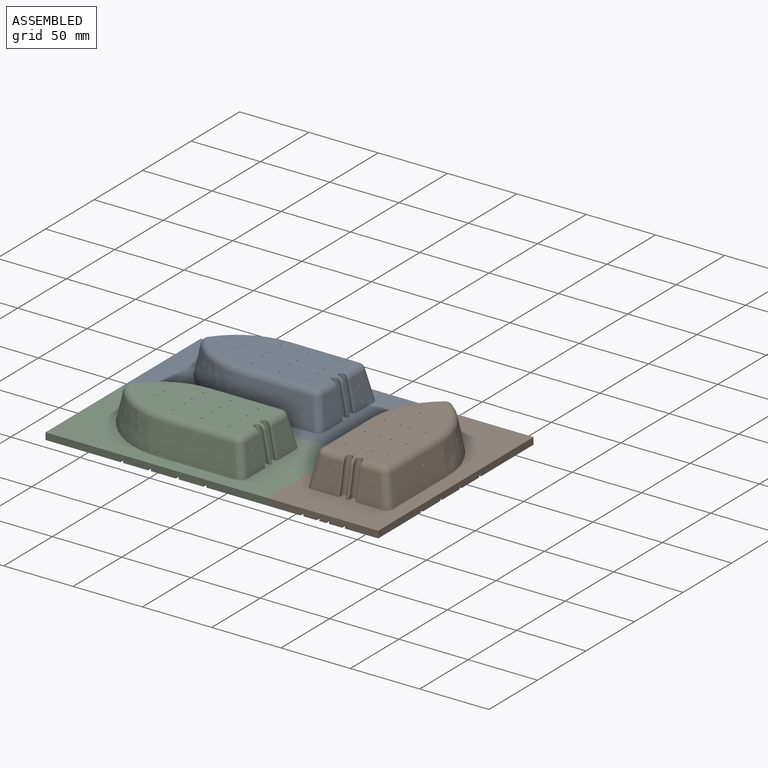
[diagram: assembled view]
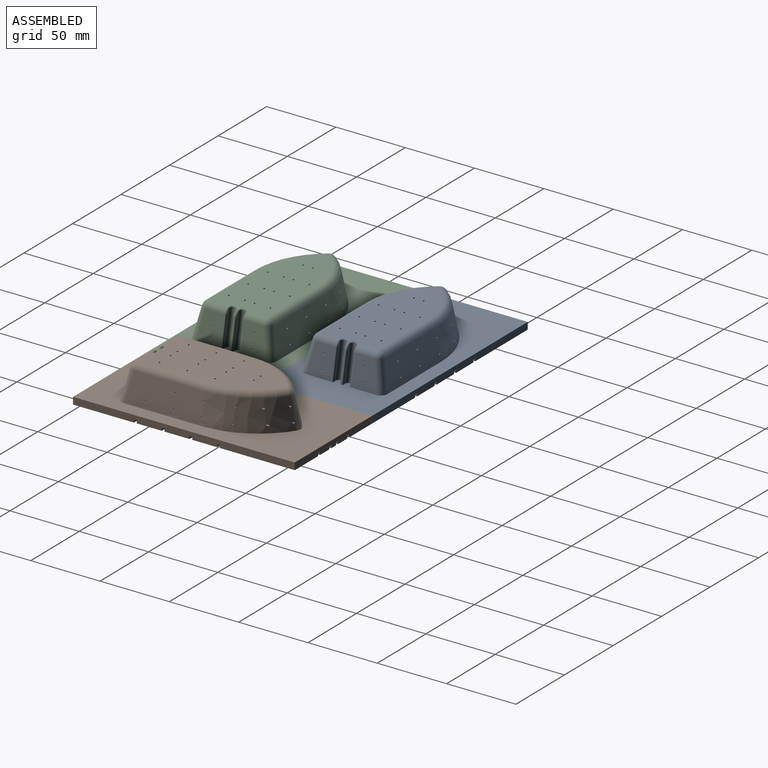
[diagram: assembled view, second angle]
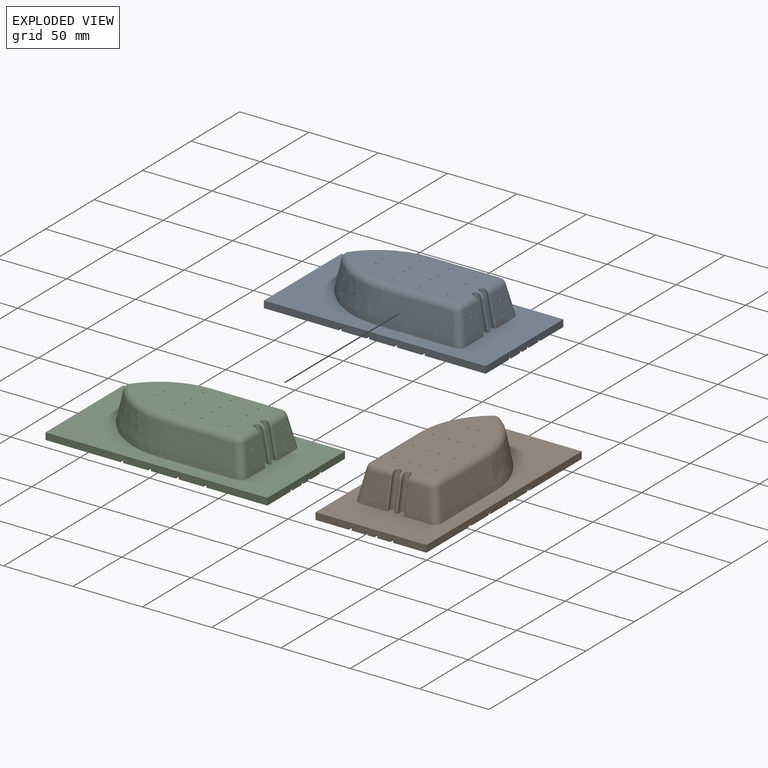
[diagram: exploded view]
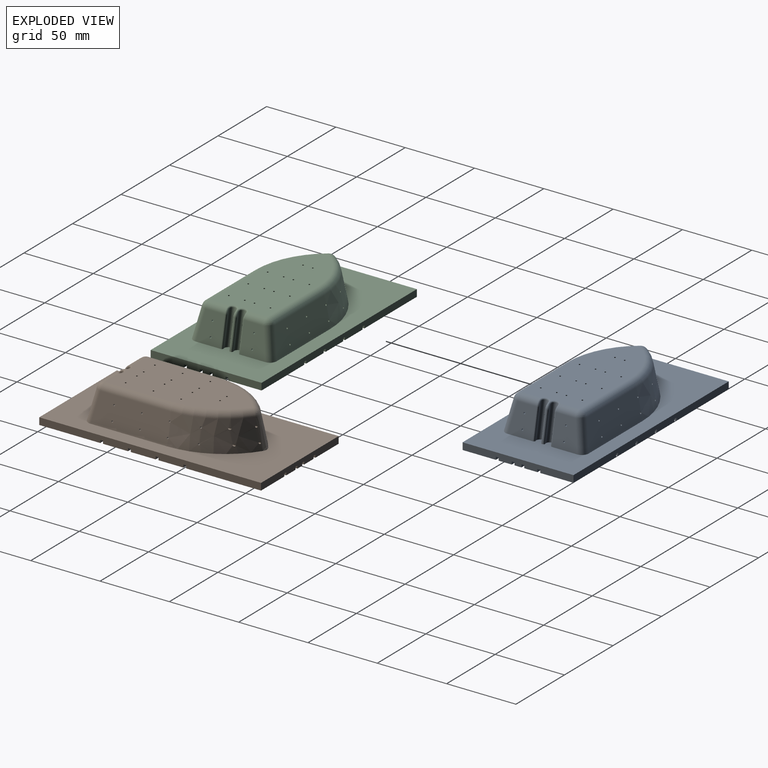
[diagram: exploded view, second angle]
ASSEMBLY  parts=3 mates=2
PART A: 267 faces, bbox 160.8x80.8x41.3 mm
  f0: plane 18x9.5mm, normal (0,0,-1), area 171mm2, adj f38,f50,f232,f233
  f1: plane 18x9.5mm, normal (0,0,-1), area 171mm2, adj f39,f51,f230,f231
  f2: plane 18x9.5mm, normal (0,0,-1), area 171mm2, adj f40,f52,f228,f229
  f3: plane 44x9.5mm, normal (0,0,-1), area 418mm2, adj f126,f222,f226,f227
  f4: plane 18x5mm, normal (0,0,-1), area 90mm2, adj f30,f42,f248,f249
  f5: plane 18x5mm, normal (0,0,-1), area 90mm2, adj f31,f43,f246,f247
  f6: plane 18x5mm, normal (0,0,-1), area 90mm2, adj f32,f44,f244,f245
  f7: plane 44x5mm, normal (0,0,-1), area 220mm2, adj f126,f220,f223,f243
  f8: plane 18x9.5mm, normal (0,0,-1), area 171mm2, adj f22,f34,f256,f257
  f9: plane 18x9.5mm, normal (0,0,-1), area 171mm2, adj f23,f35,f254,f255
  f10: plane 18x9.5mm, normal (0,0,-1), area 171mm2, adj f24,f36,f252,f253
  f11: plane 44x9.5mm, normal (0,0,-1), area 418mm2, adj f126,f218,f221,f251
  f12: plane 24x18mm, normal (0,0,-1), area 432mm2, adj f20,f26,f263,f266
  f13: plane 24x18mm, normal (0,0,-1), area 432mm2, adj f20,f27,f261,f264
  f14: plane 24x18mm, normal (0,0,-1), area 432mm2, adj f20,f28,f259,f262
  f15: plane 44x24mm, normal (0,0,-1), area 1056mm2, adj f20,f126,f219,f260
  f16: plane 24x18mm, normal (0,0,-1), area 432mm2, adj f46,f127,f240,f241
  f17: plane 24x18mm, normal (0,0,-1), area 432mm2, adj f47,f127,f238,f239
  f18: plane 24x18mm, normal (0,0,-1), area 432mm2, adj f48,f127,f236,f237
  f19: plane 44x24mm, normal (0,0,-1), area 1056mm2, adj f126,f127,f225,f235
  f20: plane 160x5mm, normal (0,1,0), area 784mm2, adj f12,f13,f14,f15,f56,f57,f126,f129
  f21: plane 54x2mm, normal (0,1,0), area 108mm2, adj f55,f57,f224,f258
  f22: plane 18x2mm, normal (0,1,0), area 36mm2, adj f8,f224,f256,f257
  f23: plane 18x2mm, normal (0,1,0), area 36mm2, adj f9,f224,f254,f255
  f24: plane 18x2mm, normal (0,1,0), area 36mm2, adj f10,f224,f252,f253
  f25: plane 54x2mm, normal (0,-1,0), area 108mm2, adj f56,f57,f224,f265
  f26: plane 18x2mm, normal (0,-1,0), area 36mm2, adj f12,f224,f263,f266
  f27: plane 18x2mm, normal (0,-1,0), area 36mm2, adj f13,f224,f261,f264
  f28: plane 18x2mm, normal (0,-1,0), area 36mm2, adj f14,f224,f259,f262
  f29: plane 54x2mm, normal (0,1,0), area 108mm2, adj f54,f57,f224,f250
  f30: plane 18x2mm, normal (0,1,0), area 36mm2, adj f4,f224,f248,f249
  f31: plane 18x2mm, normal (0,1,0), area 36mm2, adj f5,f224,f246,f247
  f32: plane 18x2mm, normal (0,1,0), area 36mm2, adj f6,f224,f244,f245
  f33: plane 54x2mm, normal (0,-1,0), area 108mm2, adj f55,f57,f224,f258
  f34: plane 18x2mm, normal (0,-1,0), area 36mm2, adj f8,f224,f256,f257
  f35: plane 18x2mm, normal (0,-1,0), area 36mm2, adj f9,f224,f254,f255
  f36: plane 18x2mm, normal (0,-1,0), area 36mm2, adj f10,f224,f252,f253
  f37: plane 54x2mm, normal (0,1,0), area 108mm2, adj f53,f57,f224,f234
  f38: plane 18x2mm, normal (0,1,0), area 36mm2, adj f0,f224,f232,f233
  f39: plane 18x2mm, normal (0,1,0), area 36mm2, adj f1,f224,f230,f231
  f40: plane 18x2mm, normal (0,1,0), area 36mm2, adj f2,f224,f228,f229
  f41: plane 54x2mm, normal (0,-1,0), area 108mm2, adj f54,f57,f224,f250
  f42: plane 18x2mm, normal (0,-1,0), area 36mm2, adj f4,f224,f248,f249
  f43: plane 18x2mm, normal (0,-1,0), area 36mm2, adj f5,f224,f246,f247
  f44: plane 18x2mm, normal (0,-1,0), area 36mm2, adj f6,f224,f244,f245
  f45: plane 54x2mm, normal (0,1,0), area 108mm2, adj f57,f128,f224,f242
  f46: plane 18x2mm, normal (0,1,0), area 36mm2, adj f16,f224,f240,f241
  f47: plane 18x2mm, normal (0,1,0), area 36mm2, adj f17,f224,f238,f239
  f48: plane 18x2mm, normal (0,1,0), area 36mm2, adj f18,f224,f236,f237
  f49: plane 54x2mm, normal (0,-1,0), area 108mm2, adj f53,f57,f224,f234
  f50: plane 18x2mm, normal (0,-1,0), area 36mm2, adj f0,f224,f232,f233
  f51: plane 18x2mm, normal (0,-1,0), area 36mm2, adj f1,f224,f230,f231
  f52: plane 18x2mm, normal (0,-1,0), area 36mm2, adj f2,f224,f228,f229
  f53: plane 54x9.5mm, normal (0,0,-1), area 513mm2, adj f37,f49,f57,f234
  f54: plane 54x5mm, normal (0,0,-1), area 270mm2, adj f29,f41,f57,f250
  f55: plane 54x9.5mm, normal (0,0,-1), area 513mm2, adj f21,f33,f57,f258
  f56: plane 54x24mm, normal (0,0,-1), area 1296mm2, adj f20,f25,f57,f265
  f57: plane 80x5mm, normal (-1,0,0), area 384mm2, adj f20,f21,f25,f29,f33,f37,f41,f45
  f58: cylinder r=0.6mm len=7.58mm, axis (0,0,1), area 28.6mm2, adj f147,f148,f191,f205,f224
  f59: cylinder r=0.6mm len=7.58mm, axis (0,0,1), area 28.1mm2, adj f121,f149,f192,f203,f224
  f60: cylinder r=0.6mm len=7.58mm, axis (0,0,1), area 28.4mm2, adj f75,f130,f202,f213,f224
  f61: cylinder r=0.6mm len=7.58mm, axis (0,0,1), area 28.6mm2, adj f149,f151,f195,f202,f224
  f62: cylinder r=0.6mm len=7.58mm, axis (0,0,1), area 28.6mm2, adj f163,f165,f194,f195,f224
  f63: cylinder r=0.6mm len=7.58mm, axis (0,0,1), area 28.1mm2, adj f119,f165,f192,f193,f224
  f64: cylinder r=0.6mm len=7.58mm, axis (0,0,1), area 28.6mm2, adj f163,f167,f190,f191,f224
  f65: cylinder r=0.6mm len=7.58mm, axis (0,0,1), area 28.6mm2, adj f151,f153,f190,f201,f224
  f66: cylinder r=0.6mm len=7.58mm, axis (0,0,1), area 28.5mm2, adj f130,f132,f201,f212,f224
  f67: cylinder r=0.6mm len=7.58mm, axis (0,0,1), area 28.4mm2, adj f83,f132,f200,f211,f224
  f68: cylinder r=0.6mm len=7.58mm, axis (0,0,1), area 28.5mm2, adj f79,f153,f188,f200,f224
  f69: cylinder r=0.6mm len=7.58mm, axis (0,0,1), area 28.5mm2, adj f77,f167,f188,f189,f224
  f70: cylinder r=0.6mm len=7.58mm, axis (0,0,1), area 28.5mm2, adj f80,f147,f189,f206,f224
  f71: cylinder r=0.6mm len=7.58mm, axis (0,0,1), area 28.4mm2, adj f72,f148,f194,f204,f224
  f72: cylinder r=0.6mm len=19.58mm, axis (1,0,0), area 72.3mm2, adj f71,f146,f193,f194,f204,f217
  f73: cylinder r=0.6mm len=19.58mm, axis (1,0,0), area 72.3mm2, adj f145,f146,f185,f186,f207,f216
  f74: cylinder r=0.6mm len=19.58mm, axis (1,0,0), area 72.3mm2, adj f131,f136,f198,f199,f210,f215
  f75: cylinder r=0.6mm len=19.58mm, axis (1,0,0), area 72.3mm2, adj f60,f131,f202,f203,f213,f214
  f76: cylinder r=0.6mm len=11.8mm, axis (1,0,0), area 44.3mm2, adj f94,f169,f176,f179,f182
  f77: cylinder r=0.6mm len=13.8mm, axis (1,0,0), area 51.9mm2, adj f69,f94,f169,f188,f189
  f78: cylinder r=0.6mm len=11.8mm, axis (1,0,0), area 44.3mm2, adj f93,f155,f162,f182,f196
  f79: cylinder r=0.6mm len=13.8mm, axis (1,0,0), area 51.9mm2, adj f68,f93,f155,f188,f200
  f80: cylinder r=0.6mm len=18.7mm, axis (1,0,0), area 70.4mm2, adj f70,f88,f144,f189,f206
  f81: cylinder r=0.6mm len=16.7mm, axis (1,0,0), area 62.8mm2, adj f88,f143,f144,f178,f179
  f82: cylinder r=0.6mm len=16.7mm, axis (1,0,0), area 62.8mm2, adj f86,f134,f139,f196,f208
  f83: cylinder r=0.6mm len=18.7mm, axis (1,0,0), area 70.4mm2, adj f67,f86,f134,f200,f211
  f84: cylinder r=5mm len=3.3mm, axis (0,-1,0), area 1mm2, adj f85,f111,f115
  f85: plane 20.98x4.2mm, normal (0.98,0,0.2), area 10.7mm2, adj f84,f109,f113,f129
  f86: plane 21.46x18.83mm, normal (0.98,0,0.2), area 345.4mm2, adj f82,f83,f95,f96,f114,f129
  f87: plane 92.02x41.8mm, normal (0,0,1), area 3301.7mm2, adj f95,f99,f100,f102,f104,f106,f107,f112
  f88: plane 21.46x18.83mm, normal (0.98,0,0.2), area 345.4mm2, adj f80,f81,f98,f99,f108,f129
  f89: plane 55.58x21.46mm, normal (0,-0.98,0.2), area 1128.2mm2, adj f91,f96,f100,f129,f208,f209,f210,f211
  f90: plane 55.27x21.16mm, normal (0,0.98,0.2), area 1128.2mm2, adj f92,f98,f104,f129,f178,f181,f204,f205
  f91: cone r=55mm half-angle=11.3deg, axis (0,0,-1), area 1190.4mm2, adj f89,f102,f103,f120,f121,f124,f125,f129
  f92: cone r=55mm half-angle=11.3deg, axis (0,0,-1), area 1189.5mm2, adj f90,f103,f106,f118,f119,f122,f123,f129
  f93: cylinder r=2.5mm len=25.23mm, axis (-0.2,0,0.98), area 233.2mm2, adj f78,f79,f113,f114,f115,f116,f117,f129
  f94: cylinder r=2.5mm len=25.23mm, axis (-0.2,0,0.98), area 233.2mm2, adj f76,f77,f108,f109,f110,f111,f112,f129
  f95: cylinder r=5mm len=14.47mm, axis (0,-1,0), area 98.3mm2, adj f86,f87,f97,f116
  f96: cylinder r=5mm len=21.36mm, axis (-0.19,0.19,0.96), area 167.1mm2, adj f86,f89,f97,f129
  f97: sphere r=5mm, area 18.4mm2, adj f95,f96,f100
  f98: cylinder r=5mm len=21.36mm, axis (0.19,0.19,-0.96), area 167.1mm2, adj f88,f90,f101,f129
  f99: cylinder r=5mm len=14.47mm, axis (0,-1,0), area 98.3mm2, adj f87,f88,f101,f110
  f100: cylinder r=5mm len=50.9mm, axis (-1,0,0), area 349.5mm2, adj f87,f89,f97,f102
  f101: sphere r=5mm, area 40.8mm2, adj f98,f99,f104
  f102: torus R=50.9mm, axis (0,0,1), area 347.6mm2, adj f87,f91,f100,f105
  f103: bspline ~39.78x11.23mm, area 127.4mm2, adj f91,f92,f105,f129
  f104: cylinder r=5mm len=50.9mm, axis (1,0,0), area 349.5mm2, adj f87,f90,f101,f106
  f105: sphere r=5mm, area 32.1mm2, adj f102,f103,f106
  f106: torus R=50.9mm, axis (0,0,1), area 347.6mm2, adj f87,f92,f104,f105
  f107: cylinder r=5mm len=2.59mm, axis (0,-1,0), area 1.6mm2, adj f87,f111,f115
  f108: bspline ~39.17x9.12mm, area 41.5mm2, adj f88,f94,f110,f129
  f109: bspline ~39.17x9.12mm, area 41.5mm2, adj f85,f94,f111,f129
  f110: bspline ~5.67x4.55mm, area 10.2mm2, adj f94,f99,f108,f112
  f111: bspline ~5.72x5.26mm, area 10.2mm2, adj f84,f94,f107,f109,f112
  f112: bspline ~5.86x2.15mm, area 8.1mm2, adj f87,f94,f110,f111
  f113: bspline ~39.17x9.12mm, area 41.5mm2, adj f85,f93,f115,f129
  f114: bspline ~39.17x9.12mm, area 41.5mm2, adj f86,f93,f116,f129
  f115: bspline ~5.72x5.26mm, area 10.2mm2, adj f84,f93,f107,f113,f117
  f116: bspline ~5.72x5.26mm, area 10.2mm2, adj f93,f95,f114,f117
  f117: bspline ~5.86x2.15mm, area 8.1mm2, adj f87,f93,f115,f116
  f118: cylinder r=0.6mm len=26.11mm, axis (1,0,0), area 97.3mm2, adj f92,f166,f173,f184,f185
  f119: cylinder r=0.6mm len=28.58mm, axis (1,0,0), area 105.6mm2, adj f63,f92,f166,f192,f193
  f120: cylinder r=0.6mm len=26.15mm, axis (1,0,0), area 96.4mm2, adj f91,f150,f157,f184,f199
  f121: cylinder r=0.6mm len=28.58mm, axis (1,0,0), area 105.6mm2, adj f59,f91,f150,f192,f203
  f122: cylinder r=0.6mm len=18.88mm, axis (1,0,0), area 67mm2, adj f92,f193,f217
  f123: cylinder r=0.6mm len=15.77mm, axis (1,0,0), area 55mm2, adj f92,f185,f216
  f124: cylinder r=0.6mm len=15.77mm, axis (1,0,0), area 55mm2, adj f91,f199,f215
  f125: cylinder r=0.6mm len=18.88mm, axis (1,0,0), area 67mm2, adj f91,f203,f214
  f126: plane 80x5mm, normal (1,0,0), area 384mm2, adj f3,f7,f11,f15,f19,f20,f127,f129
  f127: plane 160x5mm, normal (0,-1,0), area 784mm2, adj f16,f17,f18,f19,f57,f126,f128,f129
  f128: plane 54x24mm, normal (0,0,-1), area 1296mm2, adj f45,f57,f127,f242
  f129: plane 160.79x80.79mm, normal (0,0,1), area 7043.5mm2, adj f20,f57,f85,f86,f88,f89,f90,f91
  f130: cylinder r=0.6mm len=19.15mm, axis (1,0,0), area 72.2mm2, adj f60,f66,f131,f133,f201,f202,f212,f213
  f131: cylinder r=0.6mm len=9.15mm, axis (0,0,1), area 34.3mm2, adj f74,f75,f130,f135,f198,f202,f210,f213
  f132: cylinder r=0.6mm len=19.15mm, axis (1,0,0), area 72.2mm2, adj f66,f67,f133,f134,f200,f201,f211,f212
  f133: cylinder r=0.6mm len=9.15mm, axis (0,0,1), area 34.4mm2, adj f130,f132,f135,f137,f197,f201,f209,f212
  f134: cylinder r=0.6mm len=9.15mm, axis (0,0,1), area 34.3mm2, adj f82,f83,f132,f137,f196,f200,f208,f211
  f135: cylinder r=0.6mm len=19.15mm, axis (1,0,0), area 72.1mm2, adj f131,f133,f136,f138,f197,f198,f209,f210
  f136: cylinder r=0.6mm len=9.58mm, axis (0,0,1), area 36mm2, adj f74,f87,f135,f198,f210
  f137: cylinder r=0.6mm len=19.15mm, axis (1,0,0), area 72.1mm2, adj f133,f134,f138,f139,f196,f197,f208,f209
  f138: cylinder r=0.6mm len=9.58mm, axis (0,0,1), area 36mm2, adj f87,f135,f137,f197,f209
  f139: cylinder r=0.6mm len=9.58mm, axis (0,0,1), area 36mm2, adj f82,f87,f137,f196,f208
  f140: cylinder r=0.6mm len=9.58mm, axis (0,0,1), area 36mm2, adj f87,f141,f177,f180,f181
  f141: cylinder r=0.6mm len=19.15mm, axis (1,0,0), area 72.1mm2, adj f140,f142,f145,f146,f180,f181,f186,f207
  f142: cylinder r=0.6mm len=9.15mm, axis (0,0,1), area 34.5mm2, adj f141,f147,f148,f177,f180,f181,f191,f205
  f143: cylinder r=0.6mm len=9.58mm, axis (0,0,1), area 36mm2, adj f81,f87,f177,f178,f179
  f144: cylinder r=0.6mm len=9.15mm, axis (0,0,1), area 34.4mm2, adj f80,f81,f147,f177,f178,f179,f189,f206
  f145: cylinder r=0.6mm len=9.58mm, axis (0,0,1), area 36mm2, adj f73,f87,f141,f186,f207
  f146: cylinder r=0.6mm len=9.15mm, axis (0,0,1), area 34.3mm2, adj f72,f73,f141,f148,f186,f194,f204,f207
  f147: cylinder r=0.6mm len=19.15mm, axis (1,0,0), area 72.2mm2, adj f58,f70,f142,f144,f189,f191,f205,f206
  f148: cylinder r=0.6mm len=19.15mm, axis (1,0,0), area 72.2mm2, adj f58,f71,f142,f146,f191,f194,f204,f205
  f149: cylinder r=0.6mm len=19.15mm, axis (1,0,0), area 72.2mm2, adj f59,f61,f150,f152,f192,f195,f202,f203
  f150: cylinder r=0.6mm len=9.15mm, axis (0,0,1), area 34.4mm2, adj f120,f121,f149,f156,f184,f192,f199,f203
  f151: cylinder r=0.6mm len=19.15mm, axis (1,0,0), area 72.2mm2, adj f61,f65,f152,f154,f190,f195,f201,f202
  f152: cylinder r=0.6mm len=9.15mm, axis (0,0,1), area 34.5mm2, adj f149,f151,f156,f158,f187,f195,f198,f202
  f153: cylinder r=0.6mm len=19.15mm, axis (1,0,0), area 72.2mm2, adj f65,f68,f154,f155,f188,f190,f200,f201
  f154: cylinder r=0.6mm len=9.15mm, axis (0,0,1), area 34.5mm2, adj f151,f153,f158,f160,f183,f190,f197,f201
  f155: cylinder r=0.6mm len=9.15mm, axis (0,0,1), area 34.4mm2, adj f78,f79,f153,f160,f182,f188,f196,f200
  f156: cylinder r=0.6mm len=19.15mm, axis (1,0,0), area 72.1mm2, adj f150,f152,f157,f159,f184,f187,f198,f199
  f157: cylinder r=0.6mm len=9.58mm, axis (0,0,1), area 36mm2, adj f87,f120,f156,f184,f199
  f158: cylinder r=0.6mm len=19.15mm, axis (1,0,0), area 72.1mm2, adj f152,f154,f159,f161,f183,f187,f197,f198
  f159: cylinder r=0.6mm len=9.58mm, axis (0,0,1), area 36mm2, adj f87,f156,f158,f187,f198
  f160: cylinder r=0.6mm len=19.15mm, axis (1,0,0), area 72.1mm2, adj f154,f155,f161,f162,f182,f183,f196,f197
  f161: cylinder r=0.6mm len=9.58mm, axis (0,0,1), area 36mm2, adj f87,f158,f160,f183,f197
  f162: cylinder r=0.6mm len=9.58mm, axis (0,0,1), area 36mm2, adj f78,f87,f160,f182,f196
  f163: cylinder r=0.6mm len=19.15mm, axis (1,0,0), area 72.2mm2, adj f62,f64,f164,f168,f190,f191,f194,f195
  f164: cylinder r=0.6mm len=9.15mm, axis (0,0,1), area 34.5mm2, adj f163,f165,f170,f172,f186,f187,f194,f195
  f165: cylinder r=0.6mm len=19.15mm, axis (1,0,0), area 72.2mm2, adj f62,f63,f164,f166,f192,f193,f194,f195
  f166: cylinder r=0.6mm len=9.15mm, axis (0,0,1), area 34.4mm2, adj f118,f119,f165,f172,f184,f185,f192,f193
  f167: cylinder r=0.6mm len=19.15mm, axis (1,0,0), area 72.2mm2, adj f64,f69,f168,f169,f188,f189,f190,f191
  f168: cylinder r=0.6mm len=9.15mm, axis (0,0,1), area 34.5mm2, adj f163,f167,f170,f174,f180,f183,f190,f191
  f169: cylinder r=0.6mm len=9.15mm, axis (0,0,1), area 34.4mm2, adj f76,f77,f167,f174,f179,f182,f188,f189
  f170: cylinder r=0.6mm len=19.15mm, axis (1,0,0), area 72.1mm2, adj f164,f168,f171,f175,f180,f183,f186,f187
  f171: cylinder r=0.6mm len=9.58mm, axis (0,0,1), area 36mm2, adj f87,f170,f172,f186,f187
  f172: cylinder r=0.6mm len=19.15mm, axis (1,0,0), area 72.1mm2, adj f164,f166,f171,f173,f184,f185,f186,f187
  f173: cylinder r=0.6mm len=9.58mm, axis (0,0,1), area 36mm2, adj f87,f118,f172,f184,f185
  f174: cylinder r=0.6mm len=19.15mm, axis (1,0,0), area 72.1mm2, adj f168,f169,f175,f176,f179,f180,f182,f183
  f175: cylinder r=0.6mm len=9.58mm, axis (0,0,1), area 36mm2, adj f87,f170,f174,f180,f183
  f176: cylinder r=0.6mm len=9.58mm, axis (0,0,1), area 36mm2, adj f76,f87,f174,f179,f182
  f177: cylinder r=0.6mm len=19.15mm, axis (1,0,0), area 72.1mm2, adj f140,f142,f143,f144,f178,f179,f180,f181
  f178: cylinder r=0.6mm len=11.66mm, axis (0,-1,0), area 43.6mm2, adj f81,f90,f143,f144,f177
  f179: cylinder r=0.6mm len=10.65mm, axis (0,-1,0), area 40.2mm2, adj f76,f81,f143,f144,f169,f174,f176,f177
  f180: cylinder r=0.6mm len=10.65mm, axis (0,-1,0), area 40.2mm2, adj f140,f141,f142,f168,f170,f174,f175,f177
  f181: cylinder r=0.6mm len=11.66mm, axis (0,-1,0), area 43.6mm2, adj f90,f140,f141,f142,f177
  f182: cylinder r=0.6mm len=6.15mm, axis (0,-1,0), area 23.2mm2, adj f76,f78,f155,f160,f162,f169,f174,f176
  f183: cylinder r=0.6mm len=6.15mm, axis (0,-1,0), area 23.2mm2, adj f154,f158,f160,f161,f168,f170,f174,f175
  f184: cylinder r=0.6mm len=6.15mm, axis (0,-1,0), area 23.2mm2, adj f118,f120,f150,f156,f157,f166,f172,f173
  f185: cylinder r=0.6mm len=11.08mm, axis (0,-1,0), area 40.2mm2, adj f73,f118,f123,f166,f172,f173
  f186: cylinder r=0.6mm len=10.65mm, axis (0,-1,0), area 40.2mm2, adj f73,f141,f145,f146,f164,f170,f171,f172
  f187: cylinder r=0.6mm len=6.15mm, axis (0,-1,0), area 23.2mm2, adj f152,f156,f158,f159,f164,f170,f171,f172
  f188: cylinder r=0.6mm len=6.15mm, axis (0,-1,0), area 23.2mm2, adj f68,f69,f77,f79,f153,f155,f167,f169
  f189: cylinder r=0.6mm len=10.65mm, axis (0,-1,0), area 40.2mm2, adj f69,f70,f77,f80,f144,f147,f167,f169
  f190: cylinder r=0.6mm len=6.15mm, axis (0,-1,0), area 23.2mm2, adj f64,f65,f151,f153,f154,f163,f167,f168
  f191: cylinder r=0.6mm len=10.65mm, axis (0,-1,0), area 40.2mm2, adj f58,f64,f142,f147,f148,f163,f167,f168
  f192: cylinder r=0.6mm len=6.15mm, axis (0,-1,0), area 23.2mm2, adj f59,f63,f119,f121,f149,f150,f165,f166
  f193: cylinder r=0.6mm len=11.08mm, axis (0,-1,0), area 40.2mm2, adj f63,f72,f119,f122,f165,f166
  f194: cylinder r=0.6mm len=10.65mm, axis (0,-1,0), area 40.2mm2, adj f62,f71,f72,f146,f148,f163,f164,f165
  f195: cylinder r=0.6mm len=6.15mm, axis (0,-1,0), area 23.2mm2, adj f61,f62,f149,f151,f152,f163,f164,f165
  f196: cylinder r=0.6mm len=10.65mm, axis (0,-1,0), area 40.2mm2, adj f78,f82,f134,f137,f139,f155,f160,f162
  f197: cylinder r=0.6mm len=10.65mm, axis (0,-1,0), area 40.2mm2, adj f133,f135,f137,f138,f154,f158,f160,f161
  f198: cylinder r=0.6mm len=10.65mm, axis (0,-1,0), area 40.2mm2, adj f74,f131,f135,f136,f152,f156,f158,f159
  f199: cylinder r=0.6mm len=11.08mm, axis (0,-1,0), area 40.2mm2, adj f74,f120,f124,f150,f156,f157
  f200: cylinder r=0.6mm len=10.65mm, axis (0,-1,0), area 40.2mm2, adj f67,f68,f79,f83,f132,f134,f153,f155
  f201: cylinder r=0.6mm len=10.65mm, axis (0,-1,0), area 40.2mm2, adj f65,f66,f130,f132,f133,f151,f153,f154
  f202: cylinder r=0.6mm len=10.65mm, axis (0,-1,0), area 40.2mm2, adj f60,f61,f75,f130,f131,f149,f151,f152
  f203: cylinder r=0.6mm len=11.08mm, axis (0,-1,0), area 40.2mm2, adj f59,f75,f121,f125,f149,f150
  f204: cylinder r=0.6mm len=13.7mm, axis (0,-1,0), area 51.1mm2, adj f71,f72,f90,f92,f146,f148
  f205: cylinder r=0.6mm len=13.66mm, axis (0,-1,0), area 51.1mm2, adj f58,f90,f142,f147,f148
  f206: cylinder r=0.6mm len=13.66mm, axis (0,-1,0), area 51.1mm2, adj f70,f80,f90,f144,f147
  f207: cylinder r=0.6mm len=11.7mm, axis (0,-1,0), area 43.6mm2, adj f73,f90,f92,f141,f145,f146
  f208: cylinder r=0.6mm len=11.7mm, axis (0,-1,0), area 44mm2, adj f82,f89,f134,f137,f139
  f209: cylinder r=0.6mm len=11.7mm, axis (0,-1,0), area 44mm2, adj f89,f133,f135,f137,f138
  f210: cylinder r=0.6mm len=11.7mm, axis (0,-1,0), area 43.6mm2, adj f74,f89,f91,f131,f135,f136
  f211: cylinder r=0.6mm len=13.7mm, axis (0,-1,0), area 51.5mm2, adj f67,f83,f89,f132,f134
  f212: cylinder r=0.6mm len=13.7mm, axis (0,-1,0), area 51.5mm2, adj f66,f89,f130,f132,f133
  f213: cylinder r=0.6mm len=13.7mm, axis (0,-1,0), area 51.1mm2, adj f60,f75,f89,f91,f130,f131
  f214: cylinder r=0.6mm len=10.76mm, axis (0,-1,0), area 38.2mm2, adj f75,f91,f125
  f215: cylinder r=0.6mm len=8.63mm, axis (0,-1,0), area 30.1mm2, adj f74,f91,f124
  f216: cylinder r=0.6mm len=8.5mm, axis (0,-1,0), area 30.2mm2, adj f73,f92,f123
  f217: cylinder r=0.6mm len=10.63mm, axis (0,-1,0), area 38.2mm2, adj f72,f92,f122
  f218: plane 44x2mm, normal (0,1,0), area 88mm2, adj f11,f126,f224,f251
  f219: plane 44x2mm, normal (0,-1,0), area 88mm2, adj f15,f126,f224,f260
  f220: plane 44x2mm, normal (0,1,0), area 88mm2, adj f7,f126,f224,f243
  f221: plane 44x2mm, normal (0,-1,0), area 88mm2, adj f11,f126,f224,f251
  f222: plane 44x2mm, normal (0,1,0), area 88mm2, adj f3,f126,f224,f227
  f223: plane 44x2mm, normal (0,-1,0), area 88mm2, adj f7,f126,f224,f243
  f224: plane 160x80mm, normal (0,0,-1), area 1840.2mm2, adj f20,f21,f22,f23,f24,f25,f26,f27
  f225: plane 44x2mm, normal (0,1,0), area 88mm2, adj f19,f126,f224,f235
  f226: plane 44x2mm, normal (0,-1,0), area 88mm2, adj f3,f126,f224,f227
  f227: plane 9.5x2mm, normal (-1,0,0), area 19mm2, adj f3,f222,f224,f226
  f228: plane 9.5x2mm, normal (1,0,0), area 19mm2, adj f2,f40,f52,f224
  f229: plane 9.5x2mm, normal (-1,0,0), area 19mm2, adj f2,f40,f52,f224
  f230: plane 9.5x2mm, normal (1,0,0), area 19mm2, adj f1,f39,f51,f224
  f231: plane 9.5x2mm, normal (-1,0,0), area 19mm2, adj f1,f39,f51,f224
  f232: plane 9.5x2mm, normal (1,0,0), area 19mm2, adj f0,f38,f50,f224
  f233: plane 9.5x2mm, normal (-1,0,0), area 19mm2, adj f0,f38,f50,f224
  f234: plane 9.5x2mm, normal (1,0,0), area 19mm2, adj f37,f49,f53,f224
  f235: plane 24x2mm, normal (-1,0,0), area 48mm2, adj f19,f127,f224,f225
  f236: plane 24x2mm, normal (1,0,0), area 48mm2, adj f18,f48,f127,f224
  f237: plane 24x2mm, normal (-1,0,0), area 48mm2, adj f18,f48,f127,f224
  f238: plane 24x2mm, normal (1,0,0), area 48mm2, adj f17,f47,f127,f224
  f239: plane 24x2mm, normal (-1,0,0), area 48mm2, adj f17,f47,f127,f224
  f240: plane 24x2mm, normal (1,0,0), area 48mm2, adj f16,f46,f127,f224
  f241: plane 24x2mm, normal (-1,0,0), area 48mm2, adj f16,f46,f127,f224
  f242: plane 24x2mm, normal (1,0,0), area 48mm2, adj f45,f127,f128,f224
  f243: plane 5x2mm, normal (-1,0,0), area 10mm2, adj f7,f220,f223,f224
  f244: plane 5x2mm, normal (1,0,0), area 10mm2, adj f6,f32,f44,f224
  f245: plane 5x2mm, normal (-1,0,0), area 10mm2, adj f6,f32,f44,f224
  f246: plane 5x2mm, normal (1,0,0), area 10mm2, adj f5,f31,f43,f224
  f247: plane 5x2mm, normal (-1,0,0), area 10mm2, adj f5,f31,f43,f224
  f248: plane 5x2mm, normal (1,0,0), area 10mm2, adj f4,f30,f42,f224
  f249: plane 5x2mm, normal (-1,0,0), area 10mm2, adj f4,f30,f42,f224
  f250: plane 5x2mm, normal (1,0,0), area 10mm2, adj f29,f41,f54,f224
  f251: plane 9.5x2mm, normal (-1,0,0), area 19mm2, adj f11,f218,f221,f224
  f252: plane 9.5x2mm, normal (1,0,0), area 19mm2, adj f10,f24,f36,f224
  f253: plane 9.5x2mm, normal (-1,0,0), area 19mm2, adj f10,f24,f36,f224
  f254: plane 9.5x2mm, normal (1,0,0), area 19mm2, adj f9,f23,f35,f224
  f255: plane 9.5x2mm, normal (-1,0,0), area 19mm2, adj f9,f23,f35,f224
  f256: plane 9.5x2mm, normal (1,0,0), area 19mm2, adj f8,f22,f34,f224
  f257: plane 9.5x2mm, normal (-1,0,0), area 19mm2, adj f8,f22,f34,f224
  f258: plane 9.5x2mm, normal (1,0,0), area 19mm2, adj f21,f33,f55,f224
  f259: plane 24x2mm, normal (1,0,0), area 48mm2, adj f14,f20,f28,f224
  f260: plane 24x2mm, normal (-1,0,0), area 48mm2, adj f15,f20,f219,f224
  f261: plane 24x2mm, normal (1,0,0), area 48mm2, adj f13,f20,f27,f224
  f262: plane 24x2mm, normal (-1,0,0), area 48mm2, adj f14,f20,f28,f224
  f263: plane 24x2mm, normal (1,0,0), area 48mm2, adj f12,f20,f26,f224
  f264: plane 24x2mm, normal (-1,0,0), area 48mm2, adj f13,f20,f27,f224
  f265: plane 24x2mm, normal (1,0,0), area 48mm2, adj f20,f25,f56,f224
  f266: plane 24x2mm, normal (-1,0,0), area 48mm2, adj f12,f20,f26,f224
PART B: same geometry as A
PART C: same geometry as A
PLACE A t=(-50.41,20.69,-59.64)mm
PLACE B rot(axis=(0,0,-1),90deg) t=(74.59,-14.31,-59.64)mm
PLACE C t=(-50.41,-59.31,-59.64)mm
MATE fastened A.f127 <-> C.f20  axis (0,-1,0) through (34.59,-19.31,-59.64)mm
MATE fastened B.f127 <-> C.f126  axis (-1,0,0) through (34.59,-99.31,-59.64)mm
